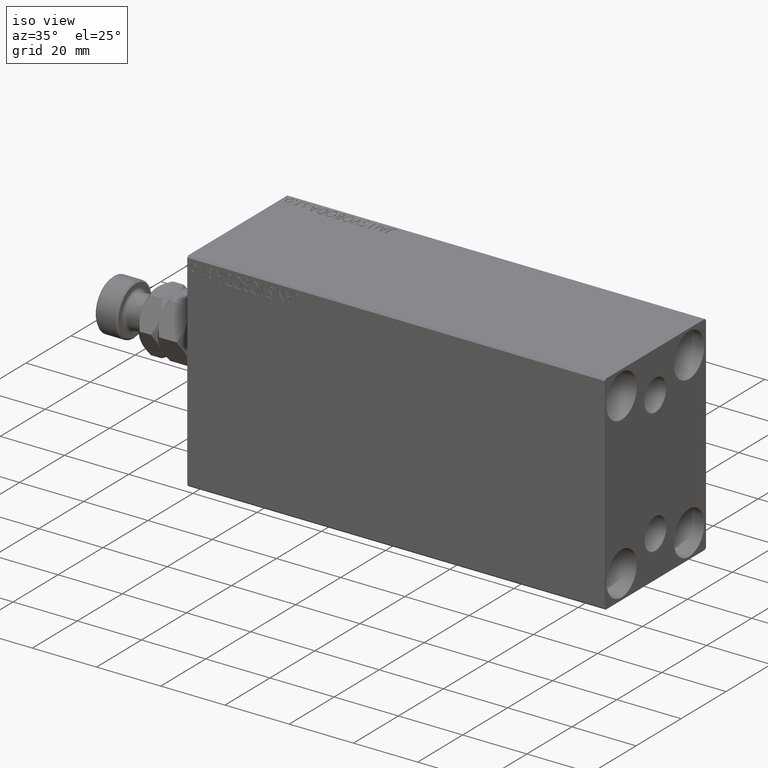
[diagram: clean part render]
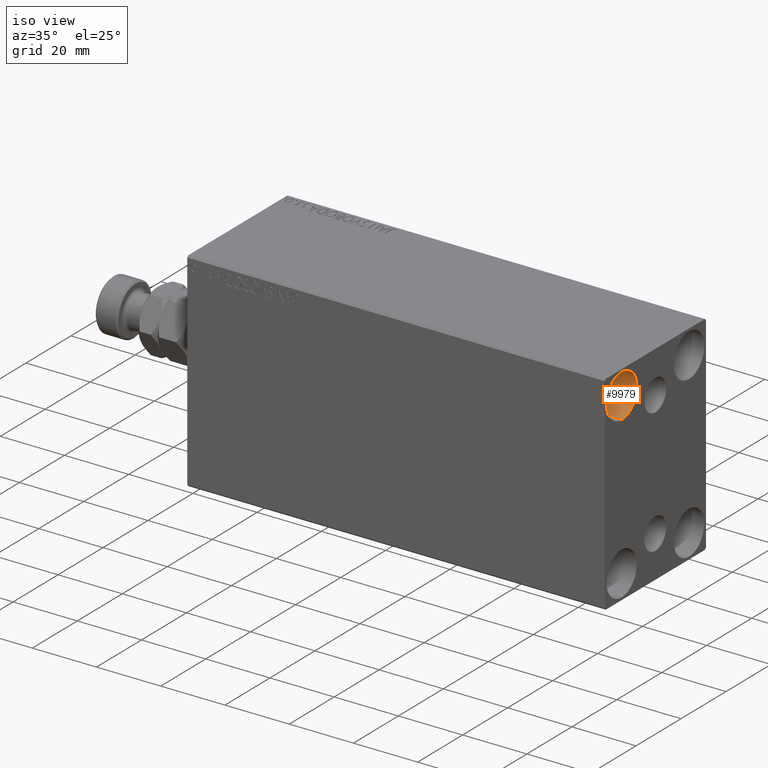
[diagram: same view with one face highlighted and labeled with its STEP entity id]
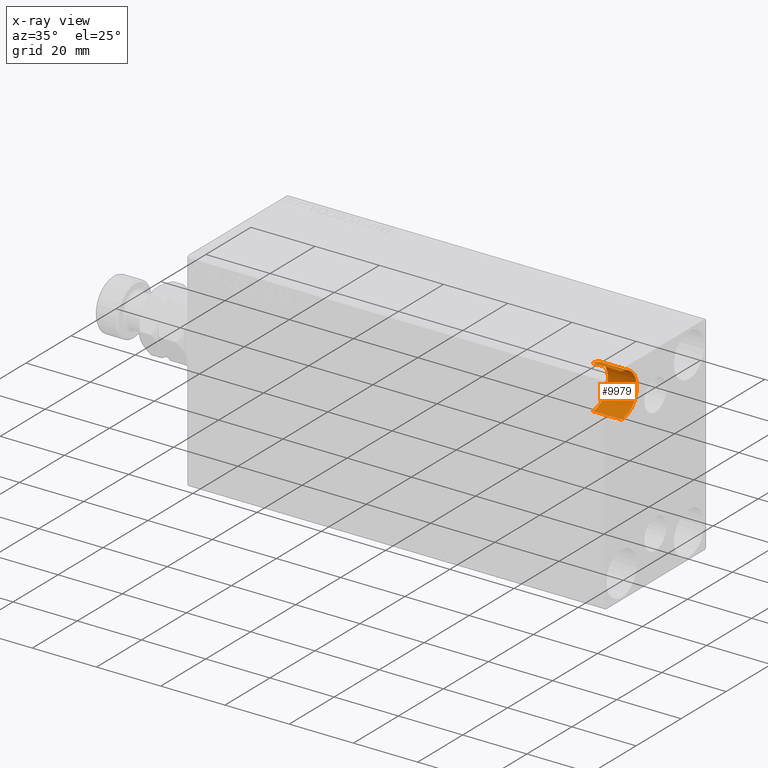
[diagram: x-ray of the same camera — body ghosted, the highlighted face saturated]
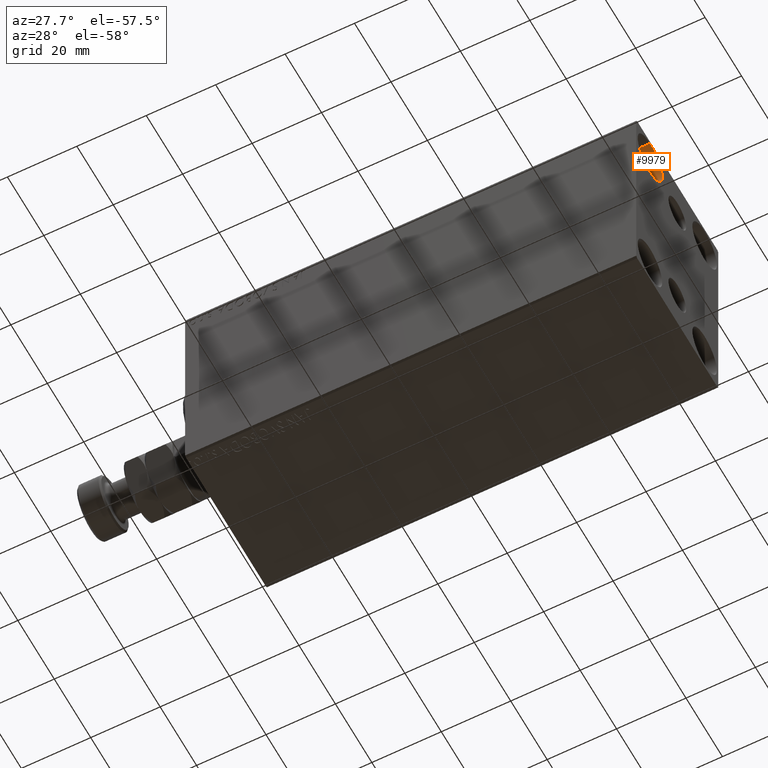
[diagram: same view with one face highlighted and labeled with its STEP entity id]
A machine part, iso view. The second image highlights one B-rep face of the part: STEP entity #9979.
The next image is the same camera in x-ray: the body ghosted, the highlighted face saturated — about 0% of this face is hidden behind the body in this view.
A second angle (auxiliary view) of the same face is appended — the face is thin or edge-on in the first view.
In plain terms, the highlighted cylindrical surface (edge-blend (fillet) strip) has radius 6.75 mm, axis along (1, 0, 0).
Its self-contained STEP definition (entity closure, byte-faithful):
#468 = ORIENTED_EDGE ( 'NONE', *, *, #6916, .F. ) ;
#1358 = CARTESIAN_POINT ( 'NONE',  ( 121.0000000000000142, -14.99999999999999645, 18.25000000000000355 ) ) ;
#1681 = EDGE_CURVE ( 'NONE', #8982, #41203, #7240, .T. ) ;
#5305 = VECTOR ( 'NONE', #34512, 1000.000000000000000 ) ;
#6916 = EDGE_CURVE ( 'NONE', #9654, #35726, #27882, .T. ) ;
#7240 = CIRCLE ( 'NONE', #32942, 6.749999999999999112 ) ;
#8982 = VERTEX_POINT ( 'NONE', #21210 ) ;
#9596 = CYLINDRICAL_SURFACE ( 'NONE', #29423, 6.749999999999999112 ) ;
#9654 = VERTEX_POINT ( 'NONE', #38373 ) ;
#9979 = ADVANCED_FACE ( 'NONE', ( #24511 ), #9596, .F. ) ;
#10049 = CARTESIAN_POINT ( 'NONE',  ( 121.0000000000000142, -14.99999999999999645, 25.00000000000000000 ) ) ;
#10906 = DIRECTION ( 'NONE',  ( 0.000000000000000000, 0.000000000000000000, 1.000000000000000000 ) ) ;
#11131 = CARTESIAN_POINT ( 'NONE',  ( 130.0000000000000000, -14.99999999999999645, 25.00000000000000000 ) ) ;
#13047 = DIRECTION ( 'NONE',  ( 1.000000000000000000, -0.000000000000000000, -0.000000000000000000 ) ) ;
#14625 = ORIENTED_EDGE ( 'NONE', *, *, #18842, .F. ) ;
#15936 = DIRECTION ( 'NONE',  ( -1.000000000000000000, -0.000000000000000000, -0.000000000000000000 ) ) ;
#16719 = DIRECTION ( 'NONE',  ( 0.000000000000000000, 0.000000000000000000, -1.000000000000000000 ) ) ;
#18842 = EDGE_CURVE ( 'NONE', #8982, #9654, #20694, .T. ) ;
#19148 = CARTESIAN_POINT ( 'NONE',  ( 121.0000000000000142, -14.99999999999999645, 25.00000000000000000 ) ) ;
#20524 = DIRECTION ( 'NONE',  ( 1.000000000000000000, -0.000000000000000000, -0.000000000000000000 ) ) ;
#20694 = LINE ( 'NONE', #27812, #5305 ) ;
#21210 = CARTESIAN_POINT ( 'NONE',  ( 121.0000000000000142, -14.99999999999999645, 31.75000000000000000 ) ) ;
#21426 = LINE ( 'NONE', #31337, #26699 ) ;
#22162 = EDGE_CURVE ( 'NONE', #41203, #35726, #21426, .T. ) ;
#24511 = FACE_OUTER_BOUND ( 'NONE', #41934, .T. ) ;
#26699 = VECTOR ( 'NONE', #20524, 1000.000000000000000 ) ;
#27812 = CARTESIAN_POINT ( 'NONE',  ( 121.0000000000000142, -14.99999999999999645, 31.75000000000000000 ) ) ;
#27882 = CIRCLE ( 'NONE', #43264, 6.749999999999999112 ) ;
#29423 = AXIS2_PLACEMENT_3D ( 'NONE', #10049, #13047, #16719 ) ;
#31337 = CARTESIAN_POINT ( 'NONE',  ( 121.0000000000000142, -14.99999999999999645, 18.25000000000000355 ) ) ;
#32942 = AXIS2_PLACEMENT_3D ( 'NONE', #19148, #15936, #40304 ) ;
#34512 = DIRECTION ( 'NONE',  ( 1.000000000000000000, -0.000000000000000000, -0.000000000000000000 ) ) ;
#35726 = VERTEX_POINT ( 'NONE', #41255 ) ;
#38373 = CARTESIAN_POINT ( 'NONE',  ( 130.0000000000000000, -14.99999999999999645, 31.75000000000000000 ) ) ;
#39182 = DIRECTION ( 'NONE',  ( -1.000000000000000000, -0.000000000000000000, -0.000000000000000000 ) ) ;
#40304 = DIRECTION ( 'NONE',  ( 0.000000000000000000, 0.000000000000000000, 1.000000000000000000 ) ) ;
#41203 = VERTEX_POINT ( 'NONE', #1358 ) ;
#41255 = CARTESIAN_POINT ( 'NONE',  ( 130.0000000000000000, -14.99999999999999645, 18.25000000000000355 ) ) ;
#41934 = EDGE_LOOP ( 'NONE', ( #14625, #44677, #42660, #468 ) ) ;
#42660 = ORIENTED_EDGE ( 'NONE', *, *, #22162, .T. ) ;
#43264 = AXIS2_PLACEMENT_3D ( 'NONE', #11131, #39182, #10906 ) ;
#44677 = ORIENTED_EDGE ( 'NONE', *, *, #1681, .T. ) ;